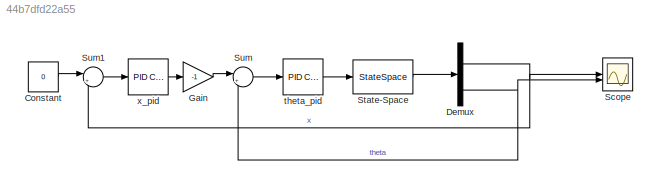
MODEL slx_44b7dfd22a55
KIND model
CONFIG AbsTol = auto
CONFIG EnableMultiTasking = off
CONFIG FixedStep = auto
CONFIG MaxStep = auto
CONFIG MinStep = auto
CONFIG RelTol = 1e-3
CONFIG SampleTimeConstraint = Unconstrained
CONFIG SolverName = VariableStepAuto
CONFIG StartTime = 0.0
CONFIG StopTime = 0.4
BLOCK [Constant] Constant
  Value = 0
BLOCK [Demux] Demux
BLOCK [Gain] Gain
  Gain = -1
BLOCK [Scope] Scope
  ActiveDisplayYMaximum = 0.0057562423155880739
  ActiveDisplayYMinimum = -0.001806180840292665
  Floating = off
  GraphicalSettings = {"AxesScalingProperties":{"AlignXAxis":"Center","AlignYAxis":"Center","AutoScaleXAxisLimits":false,"AxesScaling":"Manual","AxesScalingNumUpdates":10,"ExpandOnly":true,"ScaleAxesLimitsAtStop":false,"XAxisDataRange":100,"YAxisDataRange":80},"DisplayProperties":{"ColorOrder":["auto","auto","auto","auto","auto","auto","auto","auto","auto","auto","auto","auto","auto","auto","auto","auto","auto","auto",...<+2430ch>
  LayoutDimensionsString = [2, 1]
  MultipleDisplayCache = [{"MaxYLimMag":0.0057562423155880739,"MaxYLimReal":0.0057562423155880739,"MinYLimMag":0,"MinYLimReal":-0.001806180840292665,"PlotAsMagnitudePhase":false,"ShowGrid":true,"ShowLegend":false,"Title":"%<SignalLabel>","YLabel":""},{"MaxYLimMag":44.079120353490339,"MaxYLimReal":44.079120353490339,"MinYLimMag":0,"MinYLimReal":-20.762870207188712,"PlotAsMagnitudePhase":false,"ShowGrid":true,"ShowLegend":f...<+43ch>
  NumInputPorts = 2
  SampleTime = 1e-4
  ScopeFrameLocation = window
  Visible = on
  WasSavedAsWebScope = on
  WindowPosition = [-1842.000000,202.000000,558.000000,419.000000,]
BLOCK [StateSpace] State-Space
  A = A
  B = B
  C = C
  D = D
  InitialCondition = [0.005;0;deg2rad(5);0]
BLOCK [Sum] Sum
  Inputs = |+-
BLOCK [Sum] Sum1
  Inputs = |+-
BLOCK [Reference] theta_pid  REF=slpidlib/PID Controller
  LibrarySourceBlock = simulink/Continuous/PID Controller
  SourceBlock = slpidlib/PID Controller
  SourceType = PID 1dof
BLOCK [Reference] x_pid  REF=slpidlib/PID Controller
  LibrarySourceBlock = simulink/Continuous/PID Controller
  SourceBlock = slpidlib/PID Controller
  SourceType = PID 1dof
LINE Constant:1 -> Sum1:1
NET Demux:1 -> Scope:1, Sum1:2
NET Demux:3 -> Scope:2, Sum:2
LINE Gain:1 -> Sum:1
LINE State-Space:1 -> Demux:1
LINE Sum1:1 -> x_pid:1
LINE Sum:1 -> theta_pid:1
LINE theta_pid:1 -> State-Space:1
LINE x_pid:1 -> Gain:1
note: NET lines group one-source signal fan-out (src -> all destinations, sorted); 1:1 wires keep LINE
